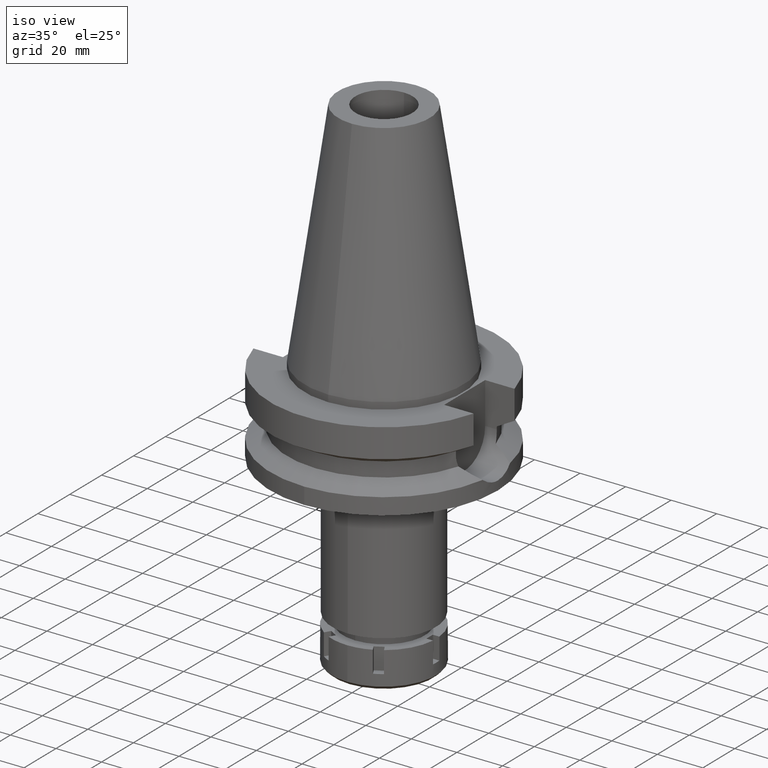
[diagram: clean part render]
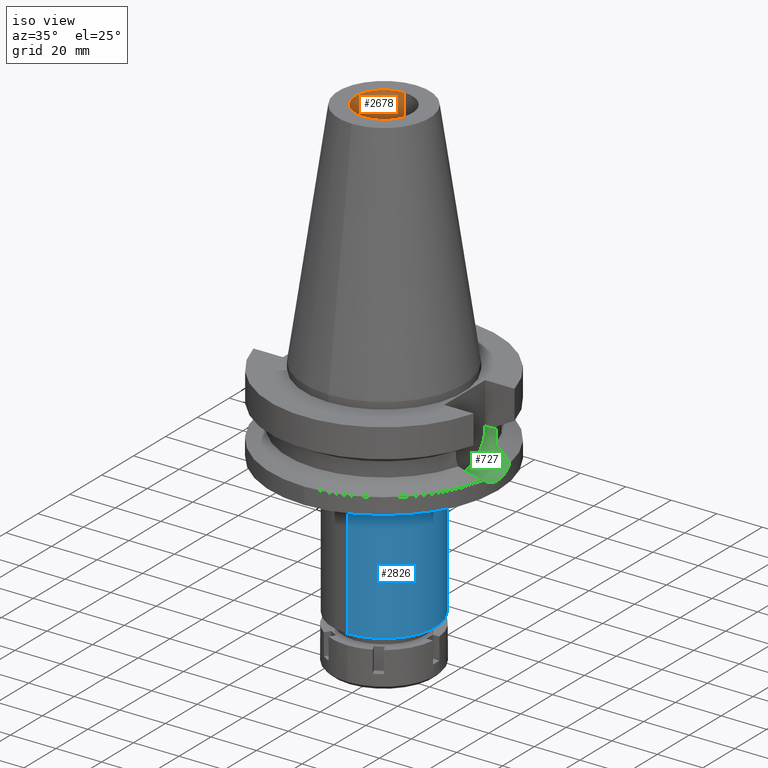
[diagram: same view with three faces highlighted in distinct colors, each labeled with its STEP entity id]
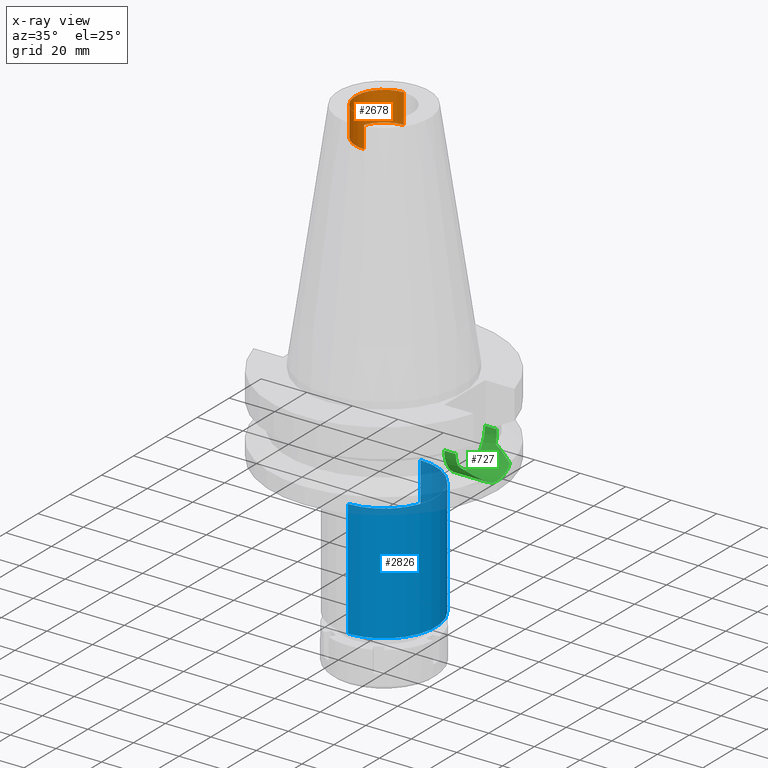
[diagram: x-ray of the same camera — body ghosted, the three highlighted faces saturated]
A machine part, iso view with three faces highlighted in distinct colors.
The next image is the same camera in x-ray (body ghosted, the three faces saturated) — at least one of them is partly hidden behind the body in this view.
Their STEP definitions:

[orange] entity #2678 — the highlighted cylindrical surface (edge-blend (fillet) strip) has radius 12.5 mm, axis along (0, 0, -1).
#38 = CARTESIAN_POINT ( 'NONE',  ( 0.0000000000000000000, 2.602251983507999750E-14, 112.4900000000000091 ) ) ;
#56 = ORIENTED_EDGE ( 'NONE', *, *, #360, .T. ) ;
#111 = EDGE_LOOP ( 'NONE', ( #3451, #3613, #658, #56 ) ) ;
#126 = EDGE_CURVE ( 'NONE', #1383, #2358, #3374, .T. ) ;
#360 = EDGE_CURVE ( 'NONE', #2358, #599, #1928, .T. ) ;
#441 = CARTESIAN_POINT ( 'NONE',  ( 0.0000000000000000000, 12.50000000000000000, 88.79999999999999716 ) ) ;
#569 = DIRECTION ( 'NONE',  ( 0.0000000000000000000, 0.0000000000000000000, 1.000000000000000000 ) ) ;
#599 = VERTEX_POINT ( 'NONE', #1389 ) ;
#658 = ORIENTED_EDGE ( 'NONE', *, *, #126, .T. ) ;
#661 = FACE_OUTER_BOUND ( 'NONE', #111, .T. ) ;
#803 = LINE ( 'NONE', #1379, #2186 ) ;
#868 = CARTESIAN_POINT ( 'NONE',  ( 0.0000000000000000000, 2.602251983507999750E-14, 101.7999999999999972 ) ) ;
#941 = DIRECTION ( 'NONE',  ( 0.0000000000000000000, 0.0000000000000000000, -1.000000000000000000 ) ) ;
#989 = CARTESIAN_POINT ( 'NONE',  ( 0.0000000000000000000, -12.50000000000000000, 88.79999999999999716 ) ) ;
#1166 = DIRECTION ( 'NONE',  ( 0.0000000000000000000, -1.000000000000000000, 0.0000000000000000000 ) ) ;
#1174 = EDGE_CURVE ( 'NONE', #599, #2115, #3316, .T. ) ;
#1379 = CARTESIAN_POINT ( 'NONE',  ( 0.0000000000000000000, -12.50000000000000000, 88.79999999999999716 ) ) ;
#1383 = VERTEX_POINT ( 'NONE', #989 ) ;
#1389 = CARTESIAN_POINT ( 'NONE',  ( 0.0000000000000000000, 12.50000000000000000, 101.7999999999999972 ) ) ;
#1593 = EDGE_CURVE ( 'NONE', #1383, #2115, #803, .T. ) ;
#1754 = AXIS2_PLACEMENT_3D ( 'NONE', #868, #569, #2869 ) ;
#1822 = DIRECTION ( 'NONE',  ( 0.0000000000000000000, 0.0000000000000000000, 1.000000000000000000 ) ) ;
#1861 = CARTESIAN_POINT ( 'NONE',  ( 0.0000000000000000000, -12.50000000000000000, 101.7999999999999972 ) ) ;
#1928 = LINE ( 'NONE', #2457, #3657 ) ;
#2054 = AXIS2_PLACEMENT_3D ( 'NONE', #2320, #2636, #2620 ) ;
#2115 = VERTEX_POINT ( 'NONE', #1861 ) ;
#2186 = VECTOR ( 'NONE', #3561, 1000.000000000000000 ) ;
#2320 = CARTESIAN_POINT ( 'NONE',  ( 0.0000000000000000000, 2.602251983507999750E-14, 88.79999999999999716 ) ) ;
#2358 = VERTEX_POINT ( 'NONE', #441 ) ;
#2457 = CARTESIAN_POINT ( 'NONE',  ( 0.0000000000000000000, 12.50000000000000000, 88.79999999999999716 ) ) ;
#2588 = CYLINDRICAL_SURFACE ( 'NONE', #2593, 12.50000000000000000 ) ;
#2593 = AXIS2_PLACEMENT_3D ( 'NONE', #38, #941, #1166 ) ;
#2620 = DIRECTION ( 'NONE',  ( 0.0000000000000000000, -1.000000000000000000, 0.0000000000000000000 ) ) ;
#2636 = DIRECTION ( 'NONE',  ( 0.0000000000000000000, 0.0000000000000000000, -1.000000000000000000 ) ) ;
#2678 = ADVANCED_FACE ( 'NONE', ( #661 ), #2588, .F. ) ;
#2869 = DIRECTION ( 'NONE',  ( 0.0000000000000000000, 1.000000000000000000, 0.0000000000000000000 ) ) ;
#3316 = CIRCLE ( 'NONE', #1754, 12.50000000000000000 ) ;
#3374 = CIRCLE ( 'NONE', #2054, 12.50000000000000000 ) ;
#3451 = ORIENTED_EDGE ( 'NONE', *, *, #1174, .T. ) ;
#3561 = DIRECTION ( 'NONE',  ( 0.0000000000000000000, 0.0000000000000000000, 1.000000000000000000 ) ) ;
#3613 = ORIENTED_EDGE ( 'NONE', *, *, #1593, .F. ) ;
#3657 = VECTOR ( 'NONE', #1822, 1000.000000000000000 ) ;

[blue] entity #2826 — the highlighted cylindrical surface (partial cylindrical patch) has radius 22.75 mm, axis along (0, 0, -1).
#177 = CARTESIAN_POINT ( 'NONE',  ( 0.0000000000000000000, 0.0000000000000000000, -48.00000000000000000 ) ) ;
#191 = CIRCLE ( 'NONE', #1852, 22.75000000000000000 ) ;
#278 = VECTOR ( 'NONE', #1403, 1000.000000000000000 ) ;
#538 = DIRECTION ( 'NONE',  ( 0.0000000000000000000, 0.0000000000000000000, 1.000000000000000000 ) ) ;
#543 = CARTESIAN_POINT ( 'NONE',  ( 0.0000000000000000000, 22.75000000000000000, -48.00000000000000000 ) ) ;
#603 = CARTESIAN_POINT ( 'NONE',  ( 0.0000000000000000000, 2.602251983507999750E-14, 112.4900000000000091 ) ) ;
#832 = ORIENTED_EDGE ( 'NONE', *, *, #3147, .T. ) ;
#864 = CARTESIAN_POINT ( 'NONE',  ( 0.0000000000000000000, 22.75000000000000000, -48.00000000000000000 ) ) ;
#903 = FACE_OUTER_BOUND ( 'NONE', #2763, .T. ) ;
#1005 = CARTESIAN_POINT ( 'NONE',  ( 0.0000000000000000000, -22.75000000000000000, -48.00000000000000000 ) ) ;
#1029 = DIRECTION ( 'NONE',  ( 0.0000000000000000000, 1.000000000000000000, 0.0000000000000000000 ) ) ;
#1035 = AXIS2_PLACEMENT_3D ( 'NONE', #603, #1741, #2870 ) ;
#1107 = CARTESIAN_POINT ( 'NONE',  ( 0.0000000000000000000, 22.75000000000000000, -99.50000000000000000 ) ) ;
#1355 = LINE ( 'NONE', #1963, #2601 ) ;
#1403 = DIRECTION ( 'NONE',  ( 0.0000000000000000000, 0.0000000000000000000, -1.000000000000000000 ) ) ;
#1410 = CARTESIAN_POINT ( 'NONE',  ( 0.0000000000000000000, -22.75000000000000000, -99.50000000000000000 ) ) ;
#1448 = VERTEX_POINT ( 'NONE', #1005 ) ;
#1697 = EDGE_CURVE ( 'NONE', #1717, #3095, #1715, .T. ) ;
#1715 = LINE ( 'NONE', #543, #278 ) ;
#1717 = VERTEX_POINT ( 'NONE', #864 ) ;
#1741 = DIRECTION ( 'NONE',  ( 0.0000000000000000000, 0.0000000000000000000, -1.000000000000000000 ) ) ;
#1852 = AXIS2_PLACEMENT_3D ( 'NONE', #2860, #538, #3140 ) ;
#1866 = DIRECTION ( 'NONE',  ( 0.0000000000000000000, 0.0000000000000000000, -1.000000000000000000 ) ) ;
#1963 = CARTESIAN_POINT ( 'NONE',  ( 0.0000000000000000000, -22.75000000000000000, -48.00000000000000000 ) ) ;
#1972 = ORIENTED_EDGE ( 'NONE', *, *, #3333, .T. ) ;
#2009 = CYLINDRICAL_SURFACE ( 'NONE', #1035, 22.75000000000000000 ) ;
#2203 = ORIENTED_EDGE ( 'NONE', *, *, #2901, .T. ) ;
#2214 = DIRECTION ( 'NONE',  ( 0.0000000000000000000, 0.0000000000000000000, -1.000000000000000000 ) ) ;
#2595 = AXIS2_PLACEMENT_3D ( 'NONE', #177, #1866, #1029 ) ;
#2598 = VERTEX_POINT ( 'NONE', #1410 ) ;
#2601 = VECTOR ( 'NONE', #2214, 1000.000000000000000 ) ;
#2763 = EDGE_LOOP ( 'NONE', ( #2203, #832, #1972, #2982 ) ) ;
#2826 = ADVANCED_FACE ( 'NONE', ( #903 ), #2009, .T. ) ;
#2860 = CARTESIAN_POINT ( 'NONE',  ( 0.0000000000000000000, 2.602251983507999750E-14, -99.50000000000000000 ) ) ;
#2870 = DIRECTION ( 'NONE',  ( 0.0000000000000000000, -1.000000000000000000, 0.0000000000000000000 ) ) ;
#2901 = EDGE_CURVE ( 'NONE', #1717, #1448, #3130, .T. ) ;
#2982 = ORIENTED_EDGE ( 'NONE', *, *, #1697, .F. ) ;
#3095 = VERTEX_POINT ( 'NONE', #1107 ) ;
#3130 = CIRCLE ( 'NONE', #2595, 22.75000000000000000 ) ;
#3140 = DIRECTION ( 'NONE',  ( 0.0000000000000000000, -1.000000000000000000, 0.0000000000000000000 ) ) ;
#3147 = EDGE_CURVE ( 'NONE', #1448, #2598, #1355, .T. ) ;
#3333 = EDGE_CURVE ( 'NONE', #2598, #3095, #191, .T. ) ;

[green] entity #727 — the highlighted cylindrical surface (edge-blend (fillet) strip) has radius 12.85 mm, axis along (1, 0, 0).
#34 = CARTESIAN_POINT ( 'NONE',  ( 49.84837320789218751, 3.895659733851558393, -33.39815592390944943 ) ) ;
#39 = FACE_OUTER_BOUND ( 'NONE', #2002, .T. ) ;
#49 = EDGE_CURVE ( 'NONE', #3384, #2283, #3114, .T. ) ;
#82 = CARTESIAN_POINT ( 'NONE',  ( 40.85052569294000335, -11.72538061688000077, -26.40718074535000426 ) ) ;
#99 = CARTESIAN_POINT ( 'NONE',  ( 42.53034043756355231, 11.33527986160932066, -27.27724400854194542 ) ) ;
#102 = CARTESIAN_POINT ( 'NONE',  ( 49.66986618806218701, 5.762088536309740050, -32.66233170636613181 ) ) ;
#120 = CARTESIAN_POINT ( 'NONE',  ( 35.39999999999999858, 0.0000000000000000000, -21.14999999999999858 ) ) ;
#128 = ORIENTED_EDGE ( 'NONE', *, *, #1441, .F. ) ;
#152 = CARTESIAN_POINT ( 'NONE',  ( 49.66531744484520772, -5.772426570909336085, -32.63572039575122119 ) ) ;
#153 = CARTESIAN_POINT ( 'NONE',  ( 45.36888519996826119, 10.36965759942468246, -28.73898915168728507 ) ) ;
#158 = CARTESIAN_POINT ( 'NONE',  ( 40.51083188481999997, 12.84999999999999964, -21.14999999999999858 ) ) ;
#167 = VERTEX_POINT ( 'NONE', #2305 ) ;
#168 = CARTESIAN_POINT ( 'NONE',  ( 49.38719034093479365, -7.838136322118320898, -31.37800129303942853 ) ) ;
#187 = CARTESIAN_POINT ( 'NONE',  ( 49.98261190536403120, -1.500633726445465221, -33.93573757110410583 ) ) ;
#198 = CARTESIAN_POINT ( 'NONE',  ( 49.26250064874000145, 8.556052234130000045, -30.73730776426999967 ) ) ;
#203 = CARTESIAN_POINT ( 'NONE',  ( 49.91305952682014180, -3.031241889295981817, -33.66153705292303755 ) ) ;
#238 = EDGE_CURVE ( 'NONE', #266, #2283, #3214, .T. ) ;
#254 = ORIENTED_EDGE ( 'NONE', *, *, #238, .F. ) ;
#266 = VERTEX_POINT ( 'NONE', #1056 ) ;
#297 = VERTEX_POINT ( 'NONE', #198 ) ;
#307 = CARTESIAN_POINT ( 'NONE',  ( 40.51083188481999997, -12.84999999999999964, -21.14999999999999858 ) ) ;
#347 = CARTESIAN_POINT ( 'NONE',  ( 40.58662608485430923, -12.60878154790535000, -23.62927549513685221 ) ) ;
#457 = DIRECTION ( 'NONE',  ( -1.000000000000000000, 0.0000000000000000000, 0.0000000000000000000 ) ) ;
#498 = B_SPLINE_CURVE_WITH_KNOTS ( 'NONE', 3,
 ( #2255, #827, #1962, #3148, #1160, #1438, #34, #3107, #2830, #1541, #971, #678, #1489, #697, #1827, #102, #1249, #659, #1237 ),
 .UNSPECIFIED., .F., .F.,
 ( 4, 2, 2, 1, 1, 1, 1, 1, 2, 2, 2, 4 ),
 ( 0.0000000000000000000, 0.2500000000000297540, 0.3750000000000446865, 0.4375000000000521805, 0.4687500000000562883, 0.4843750000000582867, 0.4921875000000596745, 0.4960937500000605627, 0.4980468750000607292, 0.5000000000000608402, 0.7500000000000304201, 1.000000000000000000 ),
 .UNSPECIFIED. ) ;
#501 = ORIENTED_EDGE ( 'NONE', *, *, #49, .T. ) ;
#527 = CARTESIAN_POINT ( 'NONE',  ( 40.60613670648131546, 12.54578755583637495, -23.92964714798038628 ) ) ;
#541 = CARTESIAN_POINT ( 'NONE',  ( 40.66327695313657387, 12.35977177935063587, -24.67238797833628539 ) ) ;
#625 = CARTESIAN_POINT ( 'NONE',  ( 40.54944727710435615, -12.72806419699665526, -22.93049076237651107 ) ) ;
#633 = ORIENTED_EDGE ( 'NONE', *, *, #3238, .T. ) ;
#659 = CARTESIAN_POINT ( 'NONE',  ( 49.38718636588254896, 7.838159208976090753, -31.37798086799878305 ) ) ;
#678 = CARTESIAN_POINT ( 'NONE',  ( 49.79347791494136999, 4.539715724454570278, -33.17137768956445854 ) ) ;
#697 = CARTESIAN_POINT ( 'NONE',  ( 49.79171236025736391, 4.559090087493951948, -33.16404260906124790 ) ) ;
#727 = ADVANCED_FACE ( 'NONE', ( #39 ), #3476, .F. ) ;
#734 = CARTESIAN_POINT ( 'NONE',  ( 40.85052569294000335, -11.72538061688000077, -26.40718074535000426 ) ) ;
#743 = AXIS2_PLACEMENT_3D ( 'NONE', #2908, #2871, #1167 ) ;
#745 = CARTESIAN_POINT ( 'NONE',  ( 49.73404098631355907, -5.148335372569310842, -32.92469446701462488 ) ) ;
#785 = CARTESIAN_POINT ( 'NONE',  ( 40.62482961095487610, 12.48525133054237379, -24.19329755004105564 ) ) ;
#822 = CARTESIAN_POINT ( 'NONE',  ( 40.51083188481999997, 12.84999999999999964, -22.03308001790878023 ) ) ;
#827 = CARTESIAN_POINT ( 'NONE',  ( 50.00000000000000000, 0.7410986934580465757, -34.00000000000000711 ) ) ;
#885 = B_SPLINE_CURVE_WITH_KNOTS ( 'NONE', 3,
 ( #1704, #2572, #1142, #2293, #2082, #1236, #2935, #2117, #2656, #1843, #153, #1290, #1555, #1248, #99, #2430 ),
 .UNSPECIFIED., .F., .F.,
 ( 4, 2, 2, 1, 1, 1, 1, 2, 2, 4 ),
 ( 0.0000000000000000000, 0.2500000000000469069, 0.3750000000000713873, 0.4375000000000827671, 0.4687500000000875966, 0.4843750000000898170, 0.4921875000000899281, 0.4960937500000889289, 0.5000000000000879297, 1.000000000000000000 ),
 .UNSPECIFIED. ) ;
#891 = EDGE_CURVE ( 'NONE', #1261, #167, #3018, .T. ) ;
#971 = CARTESIAN_POINT ( 'NONE',  ( 49.79509875745612391, 4.521875388848922483, -33.17810981394750058 ) ) ;
#1044 = CARTESIAN_POINT ( 'NONE',  ( 49.78563763145221799, -4.625094769533133032, -33.13881278610047332 ) ) ;
#1056 = CARTESIAN_POINT ( 'NONE',  ( 35.39999999999999858, 12.84999999999999964, -21.14999999999999858 ) ) ;
#1093 = AXIS2_PLACEMENT_3D ( 'NONE', #120, #457, #3514 ) ;
#1142 = CARTESIAN_POINT ( 'NONE',  ( 48.08420350912489738, 9.199014339284307340, -30.13377188362764514 ) ) ;
#1160 = CARTESIAN_POINT ( 'NONE',  ( 49.90869784561250810, 3.032821729961897805, -33.64331055704772666 ) ) ;
#1167 = DIRECTION ( 'NONE',  ( 0.0000000000000000000, 0.0000000000000000000, -1.000000000000000000 ) ) ;
#1173 = CARTESIAN_POINT ( 'NONE',  ( 35.39999999999999858, -12.84999999999999964, -21.14999999999999858 ) ) ;
#1236 = CARTESIAN_POINT ( 'NONE',  ( 46.23322466695320543, 10.02993712604732579, -29.18345497429006841 ) ) ;
#1237 = CARTESIAN_POINT ( 'NONE',  ( 49.26250064874000145, 8.556052234130000045, -30.73730776426999967 ) ) ;
#1248 = CARTESIAN_POINT ( 'NONE',  ( 44.02092064244708070, 10.87473587190525315, -28.04554399755864580 ) ) ;
#1249 = CARTESIAN_POINT ( 'NONE',  ( 49.49359661717551262, 7.117097517338555335, -31.87764506060712577 ) ) ;
#1254 = CARTESIAN_POINT ( 'NONE',  ( 44.24070016522979643, -10.80636115588409574, -28.15887332331037740 ) ) ;
#1261 = VERTEX_POINT ( 'NONE', #1459 ) ;
#1279 = EDGE_CURVE ( 'NONE', #297, #3384, #885, .T. ) ;
#1289 = CARTESIAN_POINT ( 'NONE',  ( 49.78850586346571561, -4.594055356253032407, -33.15072133026724543 ) ) ;
#1290 = CARTESIAN_POINT ( 'NONE',  ( 45.34559224722517712, 10.37841630773243295, -28.72700666603421027 ) ) ;
#1304 = CARTESIAN_POINT ( 'NONE',  ( 49.71771672570248768, -5.301668118434299970, -32.85661610131025157 ) ) ;
#1313 = CARTESIAN_POINT ( 'NONE',  ( 46.98629010998021016, -9.746398928490775049, -29.57077517930066435 ) ) ;
#1323 = CARTESIAN_POINT ( 'NONE',  ( 49.62581592557496180, -6.100685968596043729, -32.46624463462468668 ) ) ;
#1347 = CARTESIAN_POINT ( 'NONE',  ( 50.00000000000000000, 1.760368541433999985E-14, -34.00000000000000000 ) ) ;
#1438 = CARTESIAN_POINT ( 'NONE',  ( 49.86956835087499940, 3.608176225904875078, -33.48463187140002617 ) ) ;
#1441 = EDGE_CURVE ( 'NONE', #3113, #3399, #1591, .T. ) ;
#1442 = CARTESIAN_POINT ( 'NONE',  ( 40.51818719763606680, -12.82722225432308960, -22.03686830847411215 ) ) ;
#1459 = CARTESIAN_POINT ( 'NONE',  ( 40.85052569294000335, -11.72538061688000077, -26.40718074535000426 ) ) ;
#1489 = CARTESIAN_POINT ( 'NONE',  ( 49.79239523035388970, 4.551608024956790288, -33.16687999445642276 ) ) ;
#1541 = CARTESIAN_POINT ( 'NONE',  ( 49.79885843275886970, 4.480234919351184786, -33.19371722163926108 ) ) ;
#1546 = ORIENTED_EDGE ( 'NONE', *, *, #2836, .T. ) ;
#1555 = CARTESIAN_POINT ( 'NONE',  ( 45.33243307059954930, 10.38335453230233441, -28.72023715090724139 ) ) ;
#1590 = CARTESIAN_POINT ( 'NONE',  ( 49.86089524291222830, -3.802281370710396846, -33.45152773120565826 ) ) ;
#1591 = LINE ( 'NONE', #3351, #2423 ) ;
#1613 = CARTESIAN_POINT ( 'NONE',  ( 49.49360537166788276, -7.117033888788488305, -31.87769203035870191 ) ) ;
#1621 = CARTESIAN_POINT ( 'NONE',  ( 40.51083188481999997, -12.84999999999999964, -21.14999999999999858 ) ) ;
#1634 = CARTESIAN_POINT ( 'NONE',  ( 49.79053563887230638, -4.571955316160962290, -33.15915263188560402 ) ) ;
#1669 = CARTESIAN_POINT ( 'NONE',  ( 40.61156896389181270, 12.52821669071923338, -24.00856318992673266 ) ) ;
#1704 = CARTESIAN_POINT ( 'NONE',  ( 49.26250064874000145, 8.556052234130000045, -30.73730776426999967 ) ) ;
#1757 = CARTESIAN_POINT ( 'NONE',  ( 40.56599673094050473, -12.67509433839779120, -23.26596311455569932 ) ) ;
#1773 = CARTESIAN_POINT ( 'NONE',  ( 40.59736864107516396, -12.57412283048223856, -23.79851909554432865 ) ) ;
#1827 = CARTESIAN_POINT ( 'NONE',  ( 49.73972550765590483, 5.127766568180847528, -32.94800241996087209 ) ) ;
#1843 = CARTESIAN_POINT ( 'NONE',  ( 45.40379164219142893, 10.35650822756904432, -28.75694566959975518 ) ) ;
#1920 = CARTESIAN_POINT ( 'NONE',  ( 40.85052569294000335, 11.72538061688000077, -26.40718074535000426 ) ) ;
#1962 = CARTESIAN_POINT ( 'NONE',  ( 49.98260911345001034, 1.500697552647298316, -33.93573404313067954 ) ) ;
#1971 = EDGE_CURVE ( 'NONE', #2569, #297, #498, .T. ) ;
#2002 = EDGE_LOOP ( 'NONE', ( #2659, #501, #254, #2984, #128, #1546, #3497, #633, #2159 ) ) ;
#2043 = CARTESIAN_POINT ( 'NONE',  ( 40.51083188481999997, -12.84999999999999609, -21.59154171183184800 ) ) ;
#2070 = CARTESIAN_POINT ( 'NONE',  ( 40.59544671389546977, -12.58032818125506580, -23.76890350620163517 ) ) ;
#2082 = CARTESIAN_POINT ( 'NONE',  ( 46.75953253645555208, 9.809270111663222380, -29.45390692277220168 ) ) ;
#2117 = CARTESIAN_POINT ( 'NONE',  ( 45.64652038007193369, 10.26391370890529053, -28.88179748783484513 ) ) ;
#2159 = ORIENTED_EDGE ( 'NONE', *, *, #1971, .T. ) ;
#2191 = CARTESIAN_POINT ( 'NONE',  ( 50.00000000000001421, -0.7410781193699033098, -34.00000000000001421 ) ) ;
#2228 = CARTESIAN_POINT ( 'NONE',  ( 40.79434743163939459, 11.92110232363585531, -25.97065181133539369 ) ) ;
#2251 = CARTESIAN_POINT ( 'NONE',  ( 40.60092750940732031, 12.56262654778542931, -23.85254111937017640 ) ) ;
#2255 = CARTESIAN_POINT ( 'NONE',  ( 50.00000000000000000, 1.760368541433999985E-14, -34.00000000000000000 ) ) ;
#2283 = VERTEX_POINT ( 'NONE', #158 ) ;
#2293 = CARTESIAN_POINT ( 'NONE',  ( 47.09914492383754947, 9.658820935553016795, -29.62829927832092380 ) ) ;
#2305 = CARTESIAN_POINT ( 'NONE',  ( 49.26250064874000145, -8.556052234130000045, -30.73730776426999967 ) ) ;
#2403 = CARTESIAN_POINT ( 'NONE',  ( 49.26250064874000145, -8.556052234130000045, -30.73730776426999967 ) ) ;
#2423 = VECTOR ( 'NONE', #2807, 1000.000000000000000 ) ;
#2429 = CARTESIAN_POINT ( 'NONE',  ( 49.75681412771811551, -4.924294299596062352, -33.01930483962578222 ) ) ;
#2430 = CARTESIAN_POINT ( 'NONE',  ( 40.85052569294000335, 11.72538061688000077, -26.40718074535000426 ) ) ;
#2438 = B_SPLINE_CURVE_WITH_KNOTS ( 'NONE', 3,
 ( #2464, #168, #1613, #1323, #152, #1304, #745, #2429, #3025, #2985, #1044, #1289, #3577, #1634, #3290, #1590, #203, #187, #2191, #1347 ),
 .UNSPECIFIED., .F., .F.,
 ( 4, 2, 2, 2, 1, 1, 1, 1, 2, 2, 2, 4 ),
 ( 0.0000000000000000000, 0.2499999999999650280, 0.3749999999999478750, 0.4374999999999388822, 0.4687499999999350520, 0.4843749999999327205, 0.4921874999999311107, 0.4960937499999306111, 0.4980468749999303335, 0.4999999999999300559, 0.7499999999999650280, 1.000000000000000000 ),
 .UNSPECIFIED. ) ;
#2453 = CARTESIAN_POINT ( 'NONE',  ( 42.65283723944623517, -11.30683262057288019, -27.34069146161790442 ) ) ;
#2464 = CARTESIAN_POINT ( 'NONE',  ( 49.26250064874000145, -8.556052234130000045, -30.73730776426999967 ) ) ;
#2487 = CARTESIAN_POINT ( 'NONE',  ( 40.74530522851000569, 12.08734613715847139, -25.53455770061882646 ) ) ;
#2533 = VECTOR ( 'NONE', #2603, 1000.000000000000000 ) ;
#2535 = CARTESIAN_POINT ( 'NONE',  ( 50.00000000000000000, 1.760368541433999985E-14, -34.00000000000000000 ) ) ;
#2569 = VERTEX_POINT ( 'NONE', #2535 ) ;
#2572 = CARTESIAN_POINT ( 'NONE',  ( 48.69587113017157520, 8.881221620589634824, -30.44711511333064635 ) ) ;
#2603 = DIRECTION ( 'NONE',  ( 1.000000000000000000, -3.336643826789999529E-14, 0.0000000000000000000 ) ) ;
#2643 = CARTESIAN_POINT ( 'NONE',  ( 40.65435955981745764, -12.39001970624487292, -24.66361747048510011 ) ) ;
#2656 = CARTESIAN_POINT ( 'NONE',  ( 45.48500909913860113, 10.32574754409892215, -28.79872370404616078 ) ) ;
#2659 = ORIENTED_EDGE ( 'NONE', *, *, #1279, .T. ) ;
#2742 = CARTESIAN_POINT ( 'NONE',  ( 48.20262528035853933, -9.164278618336991755, -30.19450504619707587 ) ) ;
#2807 = DIRECTION ( 'NONE',  ( -1.000000000000000000, -3.510427359434999885E-14, 0.0000000000000000000 ) ) ;
#2809 = CARTESIAN_POINT ( 'NONE',  ( 40.51083188481999997, 12.84999999999999964, -21.14999999999999858 ) ) ;
#2830 = CARTESIAN_POINT ( 'NONE',  ( 49.80628862110419419, 4.396903292115012185, -33.22452887384411468 ) ) ;
#2836 = EDGE_CURVE ( 'NONE', #3113, #1261, #3215, .T. ) ;
#2871 = DIRECTION ( 'NONE',  ( 1.000000000000000000, 0.0000000000000000000, 0.0000000000000000000 ) ) ;
#2877 = CARTESIAN_POINT ( 'NONE',  ( 35.39999999999999858, 12.84999999999999964, -21.14999999999999858 ) ) ;
#2891 = CIRCLE ( 'NONE', #1093, 12.84999999999999964 ) ;
#2907 = CARTESIAN_POINT ( 'NONE',  ( 40.57496101843507574, -12.64633755876298693, -23.43369807928904081 ) ) ;
#2908 = CARTESIAN_POINT ( 'NONE',  ( 35.39999999999999858, 0.0000000000000000000, -21.14999999999999858 ) ) ;
#2935 = CARTESIAN_POINT ( 'NONE',  ( 45.96584841009470068, 10.13901845308247651, -29.04601403992775843 ) ) ;
#2980 = EDGE_CURVE ( 'NONE', #266, #3399, #2891, .T. ) ;
#2984 = ORIENTED_EDGE ( 'NONE', *, *, #2980, .T. ) ;
#2985 = CARTESIAN_POINT ( 'NONE',  ( 49.77980747409252871, -4.687522623509686071, -33.11462325492126269 ) ) ;
#3018 = B_SPLINE_CURVE_WITH_KNOTS ( 'NONE', 3,
 ( #734, #2453, #1254, #1313, #2742, #2403 ),
 .UNSPECIFIED., .F., .F.,
 ( 4, 2, 4 ),
 ( 0.0000000000000000000, 0.5000000000000000000, 1.000000000000000000 ),
 .UNSPECIFIED. ) ;
#3025 = CARTESIAN_POINT ( 'NONE',  ( 49.76777238604239528, -4.813761785160150630, -33.06473290387078379 ) ) ;
#3107 = CARTESIAN_POINT ( 'NONE',  ( 49.82079234875428853, 4.230048365419889933, -33.28454251579193368 ) ) ;
#3113 = VERTEX_POINT ( 'NONE', #1621 ) ;
#3114 = B_SPLINE_CURVE_WITH_KNOTS ( 'NONE', 3,
 ( #1920, #2228, #2487, #3649, #541, #3352, #785, #1669, #527, #3371, #2251, #3617, #822, #2809 ),
 .UNSPECIFIED., .F., .F.,
 ( 4, 2, 2, 1, 1, 2, 2, 4 ),
 ( 0.0000000000000000000, 0.2500000000000199285, 0.3750000000000298650, 0.4375000000000346945, 0.4687500000000359157, 0.4843750000000358047, 0.5000000000000356382, 1.000000000000000000 ),
 .UNSPECIFIED. ) ;
#3148 = CARTESIAN_POINT ( 'NONE',  ( 49.93043645379999873, 2.648747845077763508, -33.73005492415450846 ) ) ;
#3185 = CARTESIAN_POINT ( 'NONE',  ( 40.54025313608426018, -12.75731810731625337, -22.70684014861359756 ) ) ;
#3214 = LINE ( 'NONE', #2877, #2533 ) ;
#3215 = B_SPLINE_CURVE_WITH_KNOTS ( 'NONE', 3,
 ( #307, #2043, #1442, #3185, #625, #1757, #2907, #347, #3475, #2070, #1773, #2643, #3500, #82 ),
 .UNSPECIFIED., .F., .F.,
 ( 4, 2, 2, 1, 1, 2, 2, 4 ),
 ( 0.0000000000000000000, 0.2499999999999892308, 0.3749999999999846789, 0.4374999999999822919, 0.4687499999999819589, 0.4843749999999820144, 0.4999999999999820144, 1.000000000000000000 ),
 .UNSPECIFIED. ) ;
#3238 = EDGE_CURVE ( 'NONE', #167, #2569, #2438, .T. ) ;
#3290 = CARTESIAN_POINT ( 'NONE',  ( 49.79079948641093978, -4.569077029243484134, -33.16024877062273646 ) ) ;
#3351 = CARTESIAN_POINT ( 'NONE',  ( 40.51083188481999997, -12.84999999999999964, -21.14999999999999858 ) ) ;
#3352 = CARTESIAN_POINT ( 'NONE',  ( 40.63719938804641174, 12.44499676302016233, -24.35261212845198742 ) ) ;
#3371 = CARTESIAN_POINT ( 'NONE',  ( 40.60257095199544608, 12.55731571366465182, -23.87709474180955738 ) ) ;
#3384 = VERTEX_POINT ( 'NONE', #3668 ) ;
#3399 = VERTEX_POINT ( 'NONE', #1173 ) ;
#3475 = CARTESIAN_POINT ( 'NONE',  ( 40.59188398425018818, -12.59182459259147002, -23.71305796896682594 ) ) ;
#3476 = CYLINDRICAL_SURFACE ( 'NONE', #743, 12.85000000000000320 ) ;
#3497 = ORIENTED_EDGE ( 'NONE', *, *, #891, .T. ) ;
#3500 = CARTESIAN_POINT ( 'NONE',  ( 40.73816957792652005, -12.11682261037108965, -25.53412604446967649 ) ) ;
#3514 = DIRECTION ( 'NONE',  ( 0.0000000000000000000, 1.000000000000000000, 0.0000000000000000000 ) ) ;
#3577 = CARTESIAN_POINT ( 'NONE',  ( 49.78972506718586999, -4.580790312887489613, -33.15578537448732277 ) ) ;
#3617 = CARTESIAN_POINT ( 'NONE',  ( 40.54025086427707691, 12.75862911299039659, -22.93149008167891267 ) ) ;
#3649 = CARTESIAN_POINT ( 'NONE',  ( 40.68244601107283387, 12.29666625012446346, -24.88710380514564235 ) ) ;
#3668 = CARTESIAN_POINT ( 'NONE',  ( 40.85052569294000335, 11.72538061688000077, -26.40718074535000426 ) ) ;